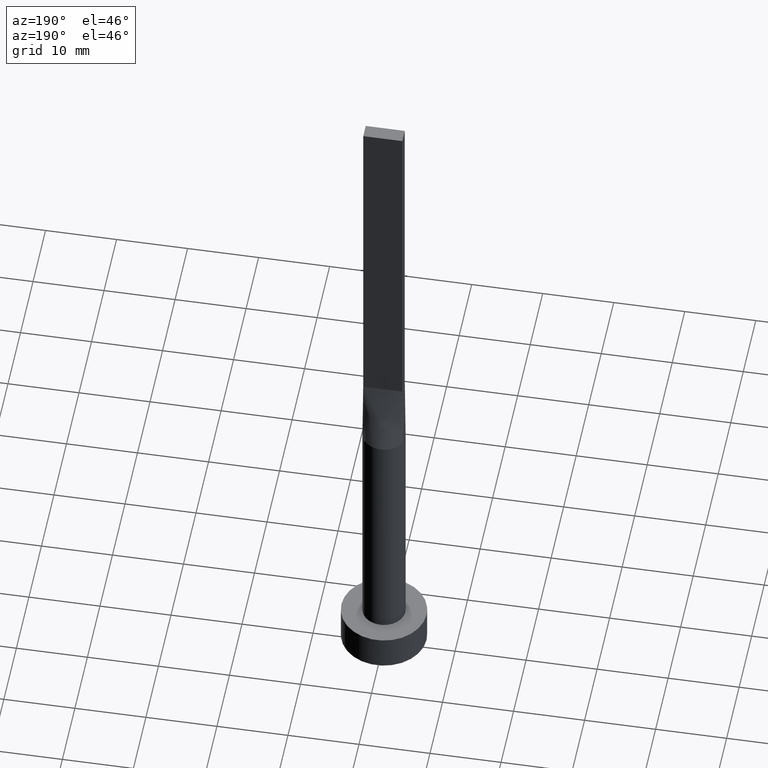
[diagram: clean part render]
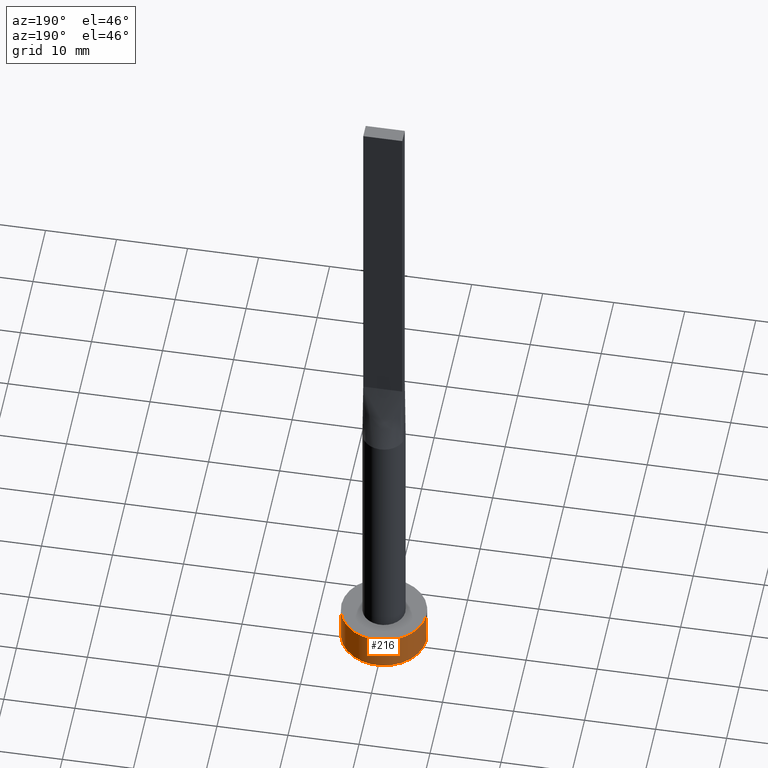
[diagram: same view with one face highlighted and labeled with its STEP entity id]
A machine part, auxiliary view. The second image highlights one B-rep face of the part: STEP entity #216.
In plain terms, the highlighted cylindrical surface (partial cylindrical patch) has radius 6 mm, axis along (-0, -0, -1).
Its self-contained STEP definition (entity closure, byte-faithful):
#20 = LINE ( 'NONE', #417, #218 ) ;
#26 = ORIENTED_EDGE ( 'NONE', *, *, #451, .T. ) ;
#40 = CIRCLE ( 'NONE', #370, 6.000000000000000888 ) ;
#74 = CARTESIAN_POINT ( 'NONE',  ( 0.000000000000000000, 0.000000000000000000, 0.000000000000000000 ) ) ;
#106 = DIRECTION ( 'NONE',  ( -1.000000000000000000, 0.000000000000000000, 0.000000000000000000 ) ) ;
#118 = AXIS2_PLACEMENT_3D ( 'NONE', #282, #457, #245 ) ;
#158 = DIRECTION ( 'NONE',  ( -0.000000000000000000, -0.000000000000000000, -1.000000000000000000 ) ) ;
#177 = DIRECTION ( 'NONE',  ( -0.000000000000000000, -0.000000000000000000, -1.000000000000000000 ) ) ;
#207 = EDGE_LOOP ( 'NONE', ( #498, #26, #467, #242 ) ) ;
#216 = ADVANCED_FACE ( 'NONE', ( #506 ), #461, .T. ) ;
#218 = VECTOR ( 'NONE', #158, 1000.000000000000000 ) ;
#242 = ORIENTED_EDGE ( 'NONE', *, *, #332, .F. ) ;
#245 = DIRECTION ( 'NONE',  ( 1.000000000000000000, 0.000000000000000000, 0.000000000000000000 ) ) ;
#255 = DIRECTION ( 'NONE',  ( 1.000000000000000000, 0.000000000000000000, 0.000000000000000000 ) ) ;
#258 = VERTEX_POINT ( 'NONE', #295 ) ;
#282 = CARTESIAN_POINT ( 'NONE',  ( 0.000000000000000000, 0.000000000000000000, 5.000000000000000000 ) ) ;
#295 = CARTESIAN_POINT ( 'NONE',  ( 6.000000000000000888, 7.347880794884120722E-16, 0.000000000000000000 ) ) ;
#311 = EDGE_CURVE ( 'NONE', #258, #374, #40, .T. ) ;
#318 = EDGE_CURVE ( 'NONE', #433, #404, #357, .T. ) ;
#332 = EDGE_CURVE ( 'NONE', #404, #374, #20, .T. ) ;
#357 = CIRCLE ( 'NONE', #118, 6.000000000000000888 ) ;
#370 = AXIS2_PLACEMENT_3D ( 'NONE', #74, #565, #255 ) ;
#374 = VERTEX_POINT ( 'NONE', #434 ) ;
#404 = VERTEX_POINT ( 'NONE', #480 ) ;
#417 = CARTESIAN_POINT ( 'NONE',  ( -6.000000000000000888, 0.000000000000000000, 5.000000000000000000 ) ) ;
#433 = VERTEX_POINT ( 'NONE', #521 ) ;
#434 = CARTESIAN_POINT ( 'NONE',  ( -6.000000000000000888, 0.000000000000000000, 0.000000000000000000 ) ) ;
#451 = EDGE_CURVE ( 'NONE', #433, #258, #575, .T. ) ;
#457 = DIRECTION ( 'NONE',  ( 0.000000000000000000, 0.000000000000000000, 1.000000000000000000 ) ) ;
#461 = CYLINDRICAL_SURFACE ( 'NONE', #546, 6.000000000000000888 ) ;
#467 = ORIENTED_EDGE ( 'NONE', *, *, #311, .T. ) ;
#480 = CARTESIAN_POINT ( 'NONE',  ( -6.000000000000000888, 0.000000000000000000, 5.000000000000000000 ) ) ;
#498 = ORIENTED_EDGE ( 'NONE', *, *, #318, .F. ) ;
#506 = FACE_OUTER_BOUND ( 'NONE', #207, .T. ) ;
#516 = DIRECTION ( 'NONE',  ( -0.000000000000000000, -0.000000000000000000, -1.000000000000000000 ) ) ;
#521 = CARTESIAN_POINT ( 'NONE',  ( 6.000000000000000888, 7.347880794884120722E-16, 5.000000000000000000 ) ) ;
#533 = VECTOR ( 'NONE', #177, 1000.000000000000000 ) ;
#546 = AXIS2_PLACEMENT_3D ( 'NONE', #556, #516, #106 ) ;
#556 = CARTESIAN_POINT ( 'NONE',  ( 0.000000000000000000, 0.000000000000000000, 5.000000000000000000 ) ) ;
#565 = DIRECTION ( 'NONE',  ( 0.000000000000000000, 0.000000000000000000, 1.000000000000000000 ) ) ;
#570 = CARTESIAN_POINT ( 'NONE',  ( 6.000000000000000888, 7.347880794884120722E-16, 5.000000000000000000 ) ) ;
#575 = LINE ( 'NONE', #570, #533 ) ;